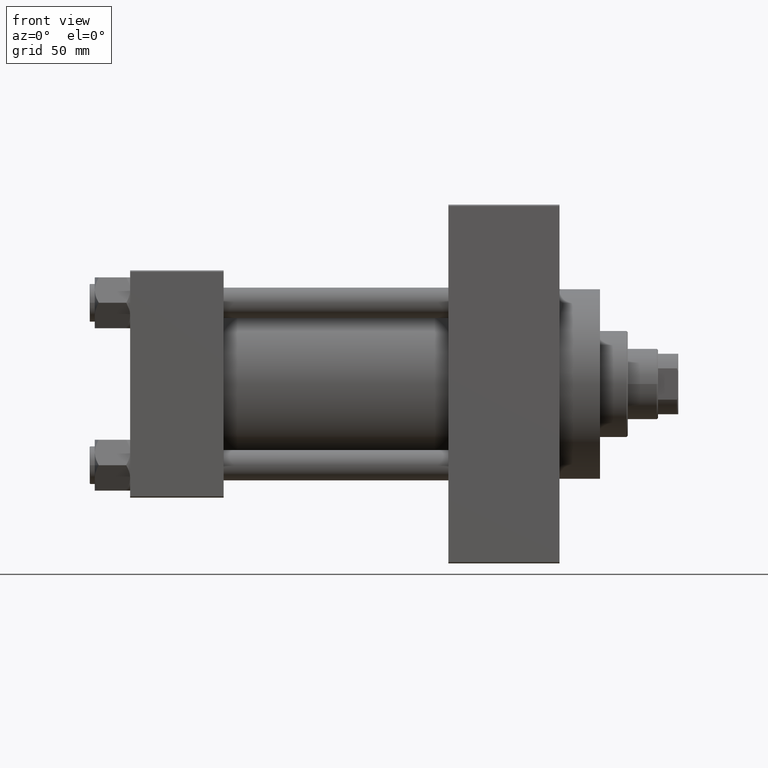
[diagram: clean part render]
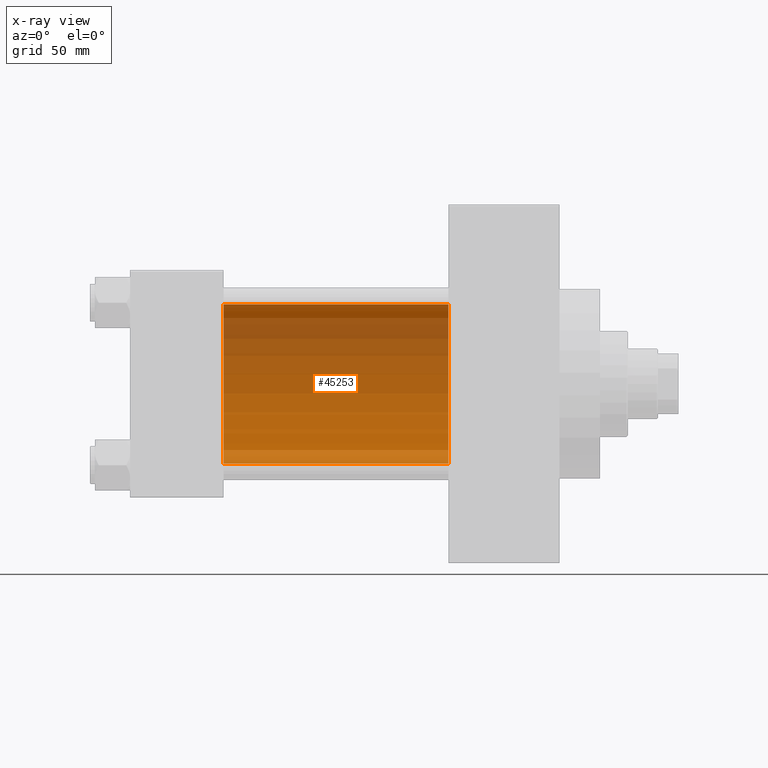
[diagram: x-ray — body ghosted, one internal face saturated and labeled with its STEP entity id]
A machine part, front view, then the same camera in x-ray: the body is ghosted and one INTERNAL B-rep face — a face not visible from any outside direction — is saturated and labeled: STEP entity #45253.
In plain terms, the highlighted cylindrical surface (partial cylindrical patch) has radius 31.5 mm, axis along (-1, -0, -0).
Its self-contained STEP definition (entity closure, byte-faithful):
#4309 = ORIENTED_EDGE ( 'NONE', *, *, #4320, .F. ) ;
#4320 = EDGE_CURVE ( 'NONE', #26180, #48183, #24084, .T. ) ;
#4369 = LINE ( 'NONE', #42162, #31700 ) ;
#5328 = CARTESIAN_POINT ( 'NONE',  ( 126.0000000000000000, -2.602085213965210642E-15, 31.50000000000000000 ) ) ;
#8111 = ORIENTED_EDGE ( 'NONE', *, *, #29728, .T. ) ;
#9162 = CARTESIAN_POINT ( 'NONE',  ( 126.0000000000000000, 1.255552203348951850E-15, -31.50000000000000000 ) ) ;
#9764 = DIRECTION ( 'NONE',  ( 0.000000000000000000, 0.000000000000000000, 1.000000000000000000 ) ) ;
#13243 = DIRECTION ( 'NONE',  ( 1.000000000000000000, 0.000000000000000000, 0.000000000000000000 ) ) ;
#17350 = DIRECTION ( 'NONE',  ( -1.000000000000000000, -0.000000000000000000, -0.000000000000000000 ) ) ;
#20767 = EDGE_LOOP ( 'NONE', ( #4309, #32755, #8111, #43367 ) ) ;
#24084 = LINE ( 'NONE', #9162, #27106 ) ;
#26180 = VERTEX_POINT ( 'NONE', #44166 ) ;
#27106 = VECTOR ( 'NONE', #17350, 1000.000000000000000 ) ;
#28403 = DIRECTION ( 'NONE',  ( 0.000000000000000000, 0.000000000000000000, -1.000000000000000000 ) ) ;
#29728 = EDGE_CURVE ( 'NONE', #47011, #42823, #4369, .T. ) ;
#29779 = DIRECTION ( 'NONE',  ( 0.000000000000000000, 0.000000000000000000, -1.000000000000000000 ) ) ;
#30976 = DIRECTION ( 'NONE',  ( -1.000000000000000000, -0.000000000000000000, -0.000000000000000000 ) ) ;
#31700 = VECTOR ( 'NONE', #30976, 1000.000000000000000 ) ;
#32420 = CIRCLE ( 'NONE', #37163, 31.50000000000000000 ) ;
#32755 = ORIENTED_EDGE ( 'NONE', *, *, #44332, .T. ) ;
#33159 = AXIS2_PLACEMENT_3D ( 'NONE', #40480, #36753, #29779 ) ;
#33225 = AXIS2_PLACEMENT_3D ( 'NONE', #43320, #43809, #9764 ) ;
#33952 = CIRCLE ( 'NONE', #33159, 31.50000000000000000 ) ;
#36097 = CARTESIAN_POINT ( 'NONE',  ( 37.00000000000000000, 1.255552203348951850E-15, -31.50000000000000000 ) ) ;
#36753 = DIRECTION ( 'NONE',  ( 1.000000000000000000, 0.000000000000000000, 0.000000000000000000 ) ) ;
#36833 = CYLINDRICAL_SURFACE ( 'NONE', #33225, 31.50000000000000000 ) ;
#37163 = AXIS2_PLACEMENT_3D ( 'NONE', #47278, #13243, #28403 ) ;
#39844 = FACE_OUTER_BOUND ( 'NONE', #20767, .T. ) ;
#40480 = CARTESIAN_POINT ( 'NONE',  ( 37.00000000000000000, -2.602085213965210642E-15, 0.000000000000000000 ) ) ;
#42162 = CARTESIAN_POINT ( 'NONE',  ( 126.0000000000000000, -2.602085213965210642E-15, 31.50000000000000000 ) ) ;
#42823 = VERTEX_POINT ( 'NONE', #48229 ) ;
#43320 = CARTESIAN_POINT ( 'NONE',  ( 126.0000000000000000, -2.602085213965210642E-15, 0.000000000000000000 ) ) ;
#43367 = ORIENTED_EDGE ( 'NONE', *, *, #43499, .F. ) ;
#43499 = EDGE_CURVE ( 'NONE', #48183, #42823, #33952, .T. ) ;
#43809 = DIRECTION ( 'NONE',  ( -1.000000000000000000, -0.000000000000000000, -0.000000000000000000 ) ) ;
#44166 = CARTESIAN_POINT ( 'NONE',  ( 126.0000000000000000, 1.255552203348951850E-15, -31.50000000000000000 ) ) ;
#44332 = EDGE_CURVE ( 'NONE', #26180, #47011, #32420, .T. ) ;
#45253 = ADVANCED_FACE ( 'NONE', ( #39844 ), #36833, .F. ) ;
#47011 = VERTEX_POINT ( 'NONE', #5328 ) ;
#47278 = CARTESIAN_POINT ( 'NONE',  ( 126.0000000000000000, -2.602085213965210642E-15, 0.000000000000000000 ) ) ;
#48183 = VERTEX_POINT ( 'NONE', #36097 ) ;
#48229 = CARTESIAN_POINT ( 'NONE',  ( 37.00000000000000000, -2.602085213965210642E-15, 31.50000000000000000 ) ) ;